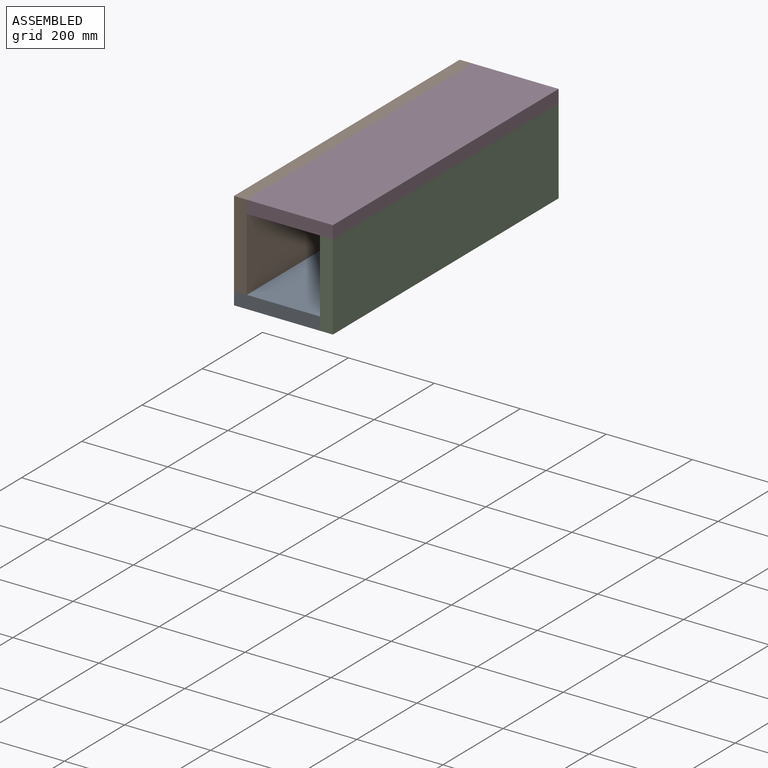
[diagram: assembled view]
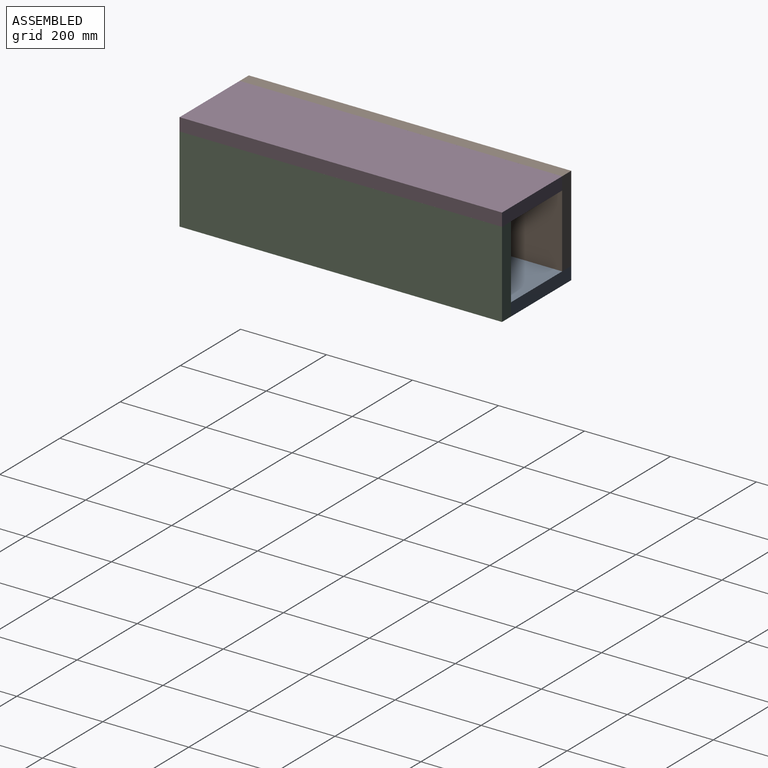
[diagram: assembled view, second angle]
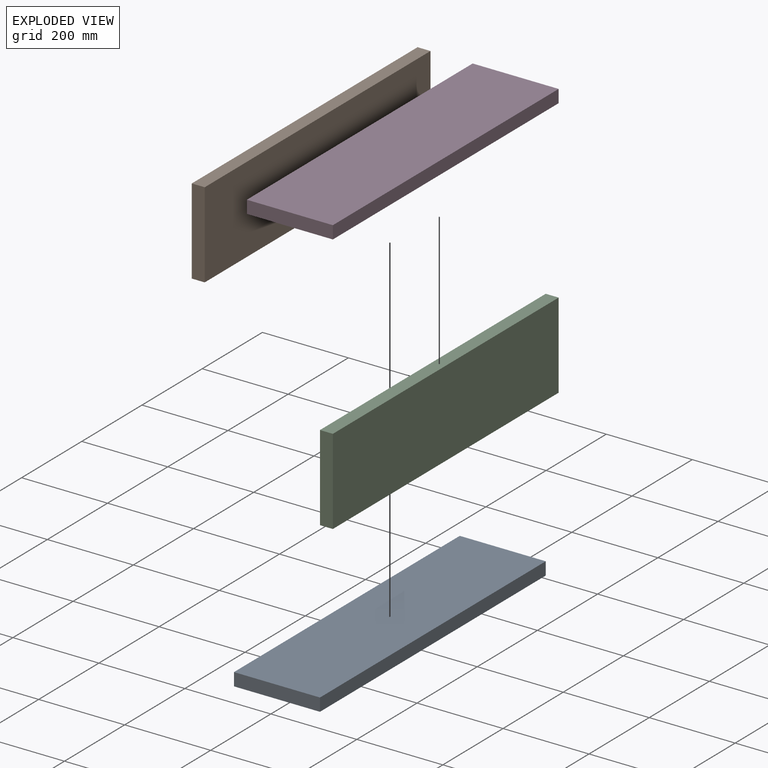
[diagram: exploded view]
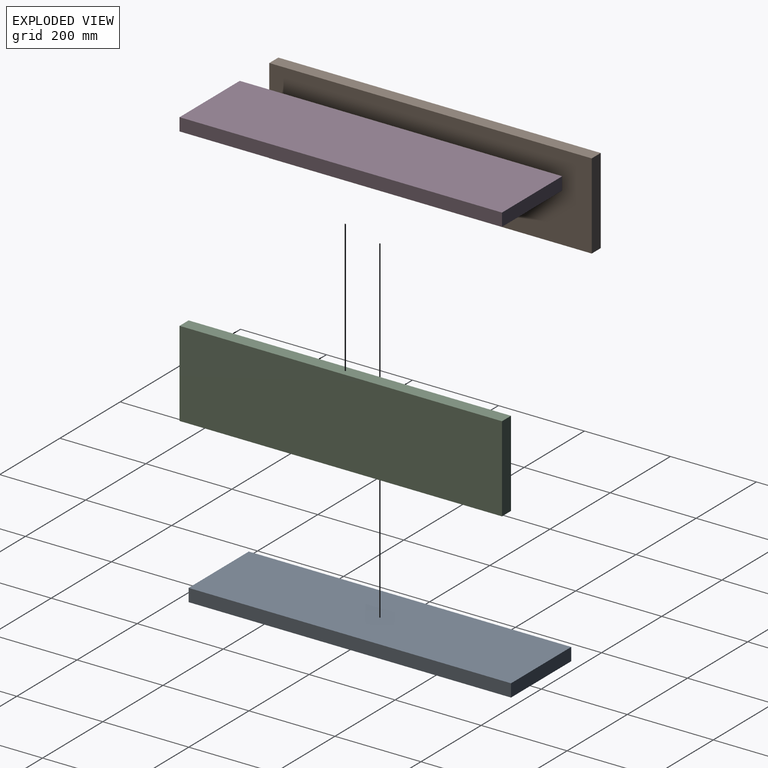
[diagram: exploded view, second angle]
ASSEMBLY  parts=4 mates=3
PART A: 6 faces, bbox 200x750x30 mm
  f0: plane 750x30mm, normal (1,0,0), area 22500mm2, adj f1,f3,f4,f5
  f1: plane 750x200mm, normal (0,0,1), area 150000mm2, adj f0,f2,f4,f5
  f2: plane 750x30mm, normal (-1,0,0), area 22500mm2, adj f1,f3,f4,f5
  f3: plane 750x200mm, normal (0,0,-1), area 150000mm2, adj f0,f2,f4,f5
  f4: plane 200x30mm, normal (0,-1,0), area 6000mm2, adj f0,f1,f2,f3
  f5: plane 200x30mm, normal (0,1,0), area 6000mm2, adj f0,f1,f2,f3
PART B: same geometry as A
PART C: same geometry as A
PART D: same geometry as A
PLACE A t=(-13.72,-10.01,-3.84)mm fixed
PLACE B rot(axis=(0,1,0),90deg) t=(-98.72,-10.01,111.16)mm
PLACE C rot(axis=(0,1,0),90deg) t=(101.28,-10.01,81.16)mm
PLACE D t=(16.28,-10.01,196.16)mm
MATE fastened B.f1 <-> D.f2  axis (1,0,0) through (-83.72,-385.01,211.16)mm
MATE fastened C.f2 <-> D.f3  axis (0,0,1) through (116.28,-385.01,181.16)mm
MATE fastened A.f1 <-> B.f0  axis (0,0,1) through (-113.72,-385.01,11.16)mm
